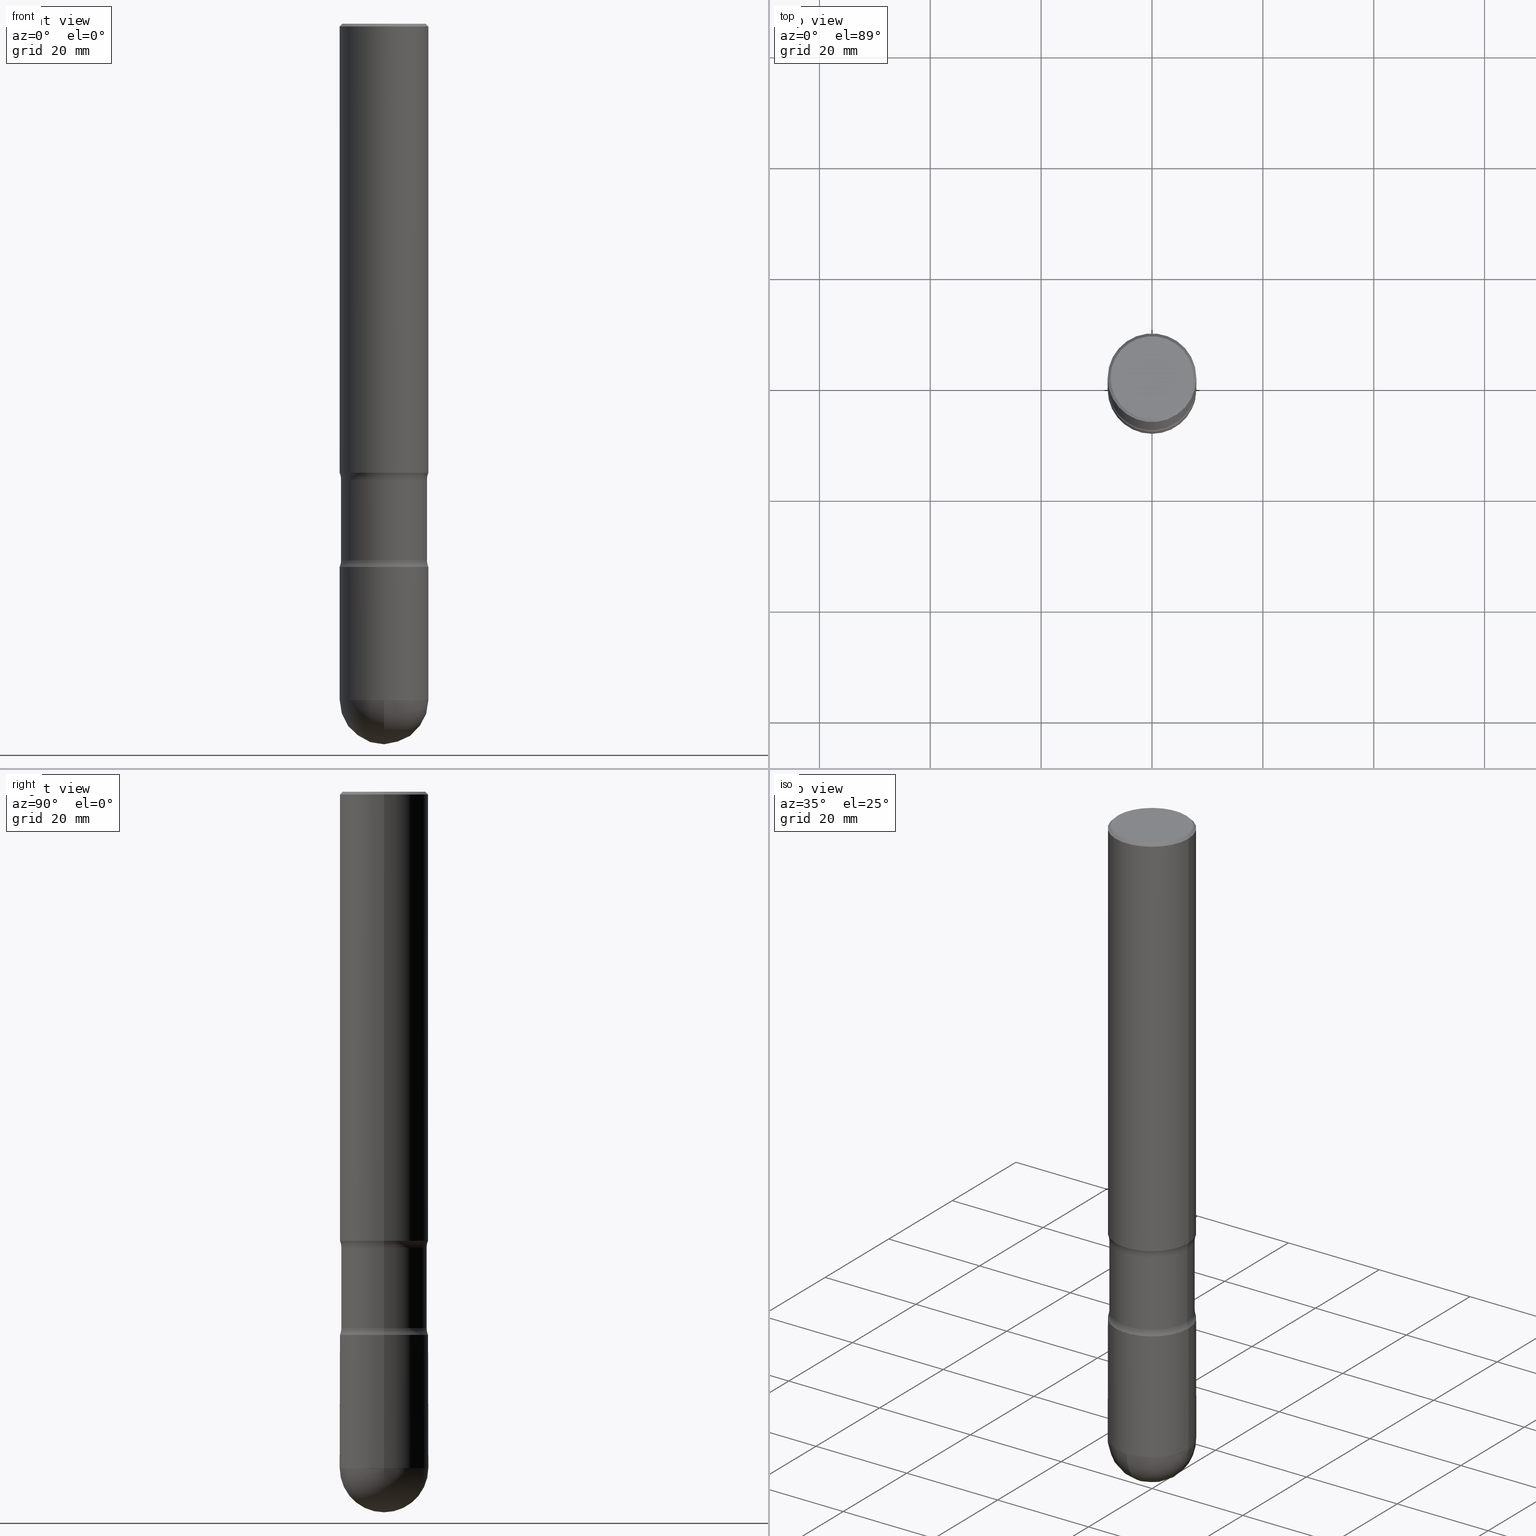
[diagram: canonical four-view strip — front | top / right | iso, engineering-drawing reading convention]
A machine part, canonical four-view strip (front | top / right | iso — engineering-drawing reading convention). The complete STEP part file that produces these views, byte-faithful:
ISO-10303-21;
HEADER;
FILE_DESCRIPTION (( 'STEP AP203' ),
    '1' );
FILE_NAME ('44938.STEP',
    '2024-02-29T19:26:28',
    ( '' ),
    ( '' ),
    'SwSTEP 2.0',
    'SolidWorks 2023',
    '' );
FILE_SCHEMA (( 'CONFIG_CONTROL_DESIGN' ));
ENDSEC;

DATA;
#1 = DIRECTION ( 'NONE',  ( 2.445468806185136597E-29, -3.491481338843145583E-15, -1.000000000000000000 ) ) ;
#2 = EDGE_LOOP ( 'NONE', ( #490, #402, #449, #219 ) ) ;
#3 = DIRECTION ( 'NONE',  ( -1.000000000000000000, 6.982962677686265922E-15, -4.883557194083112340E-29 ) ) ;
#4 = ORIENTED_EDGE ( 'NONE', *, *, #242, .F. ) ;
#5 = CARTESIAN_POINT ( 'NONE',  ( 7.918115602798833639E-29, -1.130497056272076969E-14, -3.237872256956274342 ) ) ;
#6 = ORIENTED_EDGE ( 'NONE', *, *, #160, .F. ) ;
#7 = SECURITY_CLASSIFICATION ( '', '', #108 ) ;
#8 = ORIENTED_EDGE ( 'NONE', *, *, #80, .T. ) ;
#9 = APPROVAL_DATE_TIME ( #229, #133 ) ;
#10 = ADVANCED_FACE ( 'NONE', ( #37 ), #349, .T. ) ;
#11 = ORIENTED_EDGE ( 'NONE', *, *, #220, .F. ) ;
#12 = APPROVAL ( #388, 'UNSPECIFIED' ) ;
#13 = ORIENTED_EDGE ( 'NONE', *, *, #96, .F. ) ;
#14 = CALENDAR_DATE ( 2024, 29, 2 ) ;
#15 = DIRECTION ( 'NONE',  ( -6.982962677686266711E-15, -1.000000000000000000, 3.491481338843145583E-15 ) ) ;
#16 = EDGE_LOOP ( 'NONE', ( #478, #479, #488, #224 ) ) ;
#17 = DIRECTION ( 'NONE',  ( 2.445468806185136597E-29, -3.491481338843145583E-15, -1.000000000000000000 ) ) ;
#18 = CARTESIAN_POINT ( 'NONE',  ( -0.3049999999999992717, -9.175166946026462764E-15, -3.237872256956274342 ) ) ;
#19 = APPROVAL_PERSON_ORGANIZATION ( #455, #133, #407 ) ;
#20 = CARTESIAN_POINT ( 'NONE',  ( 9.435352294904112142E-29, -1.347118244965850850E-14, -3.858300000000000285 ) ) ;
#21 = DIRECTION ( 'NONE',  ( 2.445468806185136597E-29, -3.491481338843145583E-15, -1.000000000000000000 ) ) ;
#22 = DIRECTION ( 'NONE',  ( -1.000000000000000000, 6.982962677686265922E-15, -4.883557194083112340E-29 ) ) ;
#23 = CARTESIAN_POINT ( 'NONE',  ( 0.3149499999999992861, -2.199284095337284349E-15, 1.535751875536926486E-29 ) ) ;
#24 = AXIS2_PLACEMENT_3D ( 'NONE', #377, #458, #410 ) ;
#25 = DIRECTION ( 'NONE',  ( 0.7071067811865426878, -7.319954787623238690E-15, -0.7071067811865523467 ) ) ;
#26 = CARTESIAN_POINT ( 'NONE',  ( -2.237854346276313317E-15, -0.3149500000000162170, -4.803149999999999586 ) ) ;
#27 = PERSON_AND_ORGANIZATION ( #273, #264 ) ;
#28 = CARTESIAN_POINT ( 'NONE',  ( 1.171902003415043533E-28, -1.680867884360359967E-14, -4.803150000000000475 ) ) ;
#29 = CIRCLE ( 'NONE', #378, 0.3149499999999996191 ) ;
#30 = CARTESIAN_POINT ( 'NONE',  ( -0.3149499999999992861, 2.237854346276430463E-15, -1.549218606675779033E-29 ) ) ;
#31 = CARTESIAN_POINT ( 'NONE',  ( 9.435352294904112142E-29, -1.347118244965850850E-14, -3.858300000000000285 ) ) ;
#32 = EDGE_LOOP ( 'NONE', ( #77, #523, #13, #84 ) ) ;
#33 = CARTESIAN_POINT ( 'NONE',  ( 0.3149500000000000077, -7.762795652571971957E-15, -3.189000000000001389 ) ) ;
#34 = ORIENTED_EDGE ( 'NONE', *, *, #347, .T. ) ;
#35 = CARTESIAN_POINT ( 'NONE',  ( 9.315836715029682052E-29, -1.330054587650853348E-14, -3.809427743043726888 ) ) ;
#36 = AXIS2_PLACEMENT_3D ( 'NONE', #506, #521, #359 ) ;
#37 = FACE_OUTER_BOUND ( 'NONE', #560, .T. ) ;
#38 = AXIS2_PLACEMENT_3D ( 'NONE', #440, #400, #533 ) ;
#39 = MANIFOLD_SOLID_BREP ( 'Body-Move/Copy2[2]', #518 ) ;
#40 = ADVANCED_FACE ( 'NONE', ( #543 ), #158, .F. ) ;
#41 = DIRECTION ( 'NONE',  ( 2.445468806185136597E-29, -3.491481338843145583E-15, -1.000000000000000000 ) ) ;
#42 = EDGE_LOOP ( 'NONE', ( #175, #216, #401, #352 ) ) ;
#43 = LINE ( 'NONE', #311, #333 ) ;
#44 = EDGE_LOOP ( 'NONE', ( #564, #460, #354, #8 ) ) ;
#45 = ADVANCED_FACE ( 'NONE', ( #281 ), #287, .T. ) ;
#46 = CARTESIAN_POINT ( 'NONE',  ( 9.434493024368939058E-29, -1.346995563906457038E-14, -3.857948627480751291 ) ) ;
#47 = EDGE_LOOP ( 'NONE', ( #447, #443, #314, #483, #11 ) ) ;
#48 = AXIS2_PLACEMENT_3D ( 'NONE', #278, #136, #22 ) ;
#49 = MECHANICAL_CONTEXT ( 'NONE', #92, 'mechanical' ) ;
#50 = CARTESIAN_POINT ( 'NONE',  ( 1.174595349642814099E-28, -1.677010859266445514E-14, -4.803150000000000475 ) ) ;
#51 = CYLINDRICAL_SURFACE ( 'NONE', #85, 0.3149499999999992861 ) ;
#52 = DIRECTION ( 'NONE',  ( -2.445468806185136597E-29, 3.491481338843145583E-15, 1.000000000000000000 ) ) ;
#53 = DIRECTION ( 'NONE',  ( 2.445468806185136597E-29, -3.491481338843145583E-15, -1.000000000000000000 ) ) ;
#54 = ADVANCED_FACE ( 'NONE', ( #319 ), #196, .T. ) ;
#55 = CIRCLE ( 'NONE', #240, 0.2949499999999996014 ) ;
#56 = LOCAL_TIME ( 14, 26, 28.00000000000000000, #461 ) ;
#57 = DIRECTION ( 'NONE',  ( -1.000000000000000000, 6.982962677686268288E-15, 0.000000000000000000 ) ) ;
#58 = CARTESIAN_POINT ( 'NONE',  ( 9.315836715029682052E-29, -1.330054587650853348E-14, -3.809427743043726888 ) ) ;
#59 = APPROVAL_ROLE ( '' ) ;
#60 = CARTESIAN_POINT ( 'NONE',  ( 1.171902003415043533E-28, -1.680867884360359967E-14, -4.803150000000000475 ) ) ;
#61 = APPROVAL_ROLE ( '' ) ;
#62 = EDGE_CURVE ( 'NONE', #93, #81, #403, .T. ) ;
#63 = DIRECTION ( 'NONE',  ( -2.445468806185136877E-29, 3.491481338843145188E-15, 1.000000000000000000 ) ) ;
#64 = AXIS2_PLACEMENT_3D ( 'NONE', #187, #102, #498 ) ;
#65 = PERSON_AND_ORGANIZATION ( #273, #264 ) ;
#66 = CIRCLE ( 'NONE', #532, 0.2949499999999996014 ) ;
#67 = DIRECTION ( 'NONE',  ( 2.445468806185136597E-29, -3.491481338843145583E-15, -1.000000000000000000 ) ) ;
#68 = LINE ( 'NONE', #513, #197 ) ;
#69 = EDGE_CURVE ( 'NONE', #129, #432, #55, .T. ) ;
#70 = EDGE_CURVE ( 'NONE', #202, #442, #208, .T. ) ;
#71 = CARTESIAN_POINT ( 'NONE',  ( 0.3049999999999992717, -1.334623514300501159E-14, -3.237872256956274342 ) ) ;
#72 = VERTEX_POINT ( 'NONE', #328 ) ;
#73 = AXIS2_PLACEMENT_3D ( 'NONE', #500, #99, #290 ) ;
#74 = PLANE ( 'NONE',  #248 ) ;
#75 = LOCAL_TIME ( 14, 26, 28.00000000000000000, #296 ) ;
#76 = CARTESIAN_POINT ( 'NONE',  ( 2.199284095337402284E-15, 0.3149499999999825772, -4.803150000000001363 ) ) ;
#77 = ORIENTED_EDGE ( 'NONE', *, *, #261, .F. ) ;
#78 = ORIENTED_EDGE ( 'NONE', *, *, #566, .F. ) ;
#79 = DIRECTION ( 'NONE',  ( -1.000000000000000000, 6.982962677686267499E-15, 0.000000000000000000 ) ) ;
#80 = EDGE_CURVE ( 'NONE', #107, #515, #531, .T. ) ;
#81 = VERTEX_POINT ( 'NONE', #376 ) ;
#82 = DIRECTION ( 'NONE',  ( 2.445468806185136877E-29, -3.491481338843145188E-15, -1.000000000000000000 ) ) ;
#83 = AXIS2_PLACEMENT_3D ( 'NONE', #492, #496, #372 ) ;
#84 = ORIENTED_EDGE ( 'NONE', *, *, #516, .F. ) ;
#85 = AXIS2_PLACEMENT_3D ( 'NONE', #236, #233, #536 ) ;
#86 = EDGE_LOOP ( 'NONE', ( #124, #34, #132, #125 ) ) ;
#87 = ORIENTED_EDGE ( 'NONE', *, *, #225, .T. ) ;
#88 = DIRECTION ( 'NONE',  ( 2.445468806185136597E-29, -3.491481338843145583E-15, -1.000000000000000000 ) ) ;
#89 = ORIENTED_EDGE ( 'NONE', *, *, #422, .T. ) ;
#90 = VERTEX_POINT ( 'NONE', #235 ) ;
#91 = CARTESIAN_POINT ( 'NONE',  ( 7.798600022924404670E-29, -1.113433398957079626E-14, -3.189000000000001389 ) ) ;
#92 = APPLICATION_CONTEXT ( 'configuration controlled 3d designs of mechanical parts and assemblies' ) ;
#93 = VERTEX_POINT ( 'NONE', #18 ) ;
#94 = CC_DESIGN_PERSON_AND_ORGANIZATION_ASSIGNMENT ( #65, #505, ( #457 ) ) ;
#95 = AXIS2_PLACEMENT_3D ( 'NONE', #146, #450, #451 ) ;
#96 = EDGE_CURVE ( 'NONE', #259, #221, #456, .T. ) ;
#97 = CYLINDRICAL_SURFACE ( 'NONE', #241, 0.3049999999999993272 ) ;
#98 = CARTESIAN_POINT ( 'NONE',  ( -0.3049999999999993827, -1.117074225981422655E-14, -3.809427743043726888 ) ) ;
#99 = DIRECTION ( 'NONE',  ( 2.445468806185136597E-29, -3.491481338843145583E-15, -1.000000000000000000 ) ) ;
#100 = VECTOR ( 'NONE', #299, 39.37007874015748143 ) ;
#101 = DIRECTION ( 'NONE',  ( 2.445468806185136597E-29, -3.491481338843145583E-15, -1.000000000000000000 ) ) ;
#102 = DIRECTION ( 'NONE',  ( -2.445468806185136597E-29, 3.491481338843145583E-15, 1.000000000000000000 ) ) ;
#103 = EDGE_CURVE ( 'NONE', #399, #180, #563, .T. ) ;
#104 = PRODUCT_DEFINITION ( 'UNKNOWN', '', #457, #164 ) ;
#105 = DATE_AND_TIME ( #298, #503 ) ;
#106 = LINE ( 'NONE', #30, #177 ) ;
#107 = VERTEX_POINT ( 'NONE', #98 ) ;
#108 = SECURITY_CLASSIFICATION_LEVEL ( 'unclassified' ) ;
#109 = SPHERICAL_SURFACE ( 'NONE', #255, 0.3149499999999996191 ) ;
#110 = TOROIDAL_SURFACE ( 'NONE', #309, 0.4300000000000015477, 0.1250000000000021372 ) ;
#111 = AXIS2_PLACEMENT_3D ( 'NONE', #405, #366, #491 ) ;
#112 = DIRECTION ( 'NONE',  ( 2.445468806185136597E-29, -3.491481338843145583E-15, -1.000000000000000000 ) ) ;
#113 = CARTESIAN_POINT ( 'NONE',  ( 7.918115602798833639E-29, -1.130497056272076969E-14, -3.237872256956274342 ) ) ;
#114 = CC_DESIGN_PERSON_AND_ORGANIZATION_ASSIGNMENT ( #555, #553, ( #7 ) ) ;
#115 = PERSON_AND_ORGANIZATION_ROLE ( 'creator' ) ;
#116 = CARTESIAN_POINT ( 'NONE',  ( 9.435352294904112142E-29, -1.347118244965850850E-14, -3.858300000000000285 ) ) ;
#117 = AXIS2_PLACEMENT_3D ( 'NONE', #138, #185, #145 ) ;
#118 = LINE ( 'NONE', #434, #321 ) ;
#119 = CC_DESIGN_APPROVAL ( #329, ( #457 ) ) ;
#120 = DIRECTION ( 'NONE',  ( -1.000000000000000000, 6.982962677686266711E-15, 0.000000000000000000 ) ) ;
#121 = ORIENTED_EDGE ( 'NONE', *, *, #495, .T. ) ;
#122 = ORIENTED_EDGE ( 'NONE', *, *, #514, .T. ) ;
#123 = CARTESIAN_POINT ( 'NONE',  ( 0.000000000000000000, 0.000000000000000000, 0.000000000000000000 ) ) ;
#124 = ORIENTED_EDGE ( 'NONE', *, *, #225, .F. ) ;
#125 = ORIENTED_EDGE ( 'NONE', *, *, #143, .F. ) ;
#126 = CARTESIAN_POINT ( 'NONE',  ( 0.3148013725192478907, -1.562964982492859971E-14, -3.857948627480751291 ) ) ;
#127 = ADVANCED_FACE ( 'NONE', ( #283 ), #547, .T. ) ;
#128 = VECTOR ( 'NONE', #421, 39.37007874015748143 ) ;
#129 = VERTEX_POINT ( 'NONE', #331 ) ;
#130 = AXIS2_PLACEMENT_3D ( 'NONE', #325, #101, #57 ) ;
#131 = DIRECTION ( 'NONE',  ( 2.445468806185136597E-29, -3.491481338843145583E-15, -1.000000000000000000 ) ) ;
#132 = ORIENTED_EDGE ( 'NONE', *, *, #192, .T. ) ;
#133 = APPROVAL ( #193, 'UNSPECIFIED' ) ;
#134 = ORIENTED_EDGE ( 'NONE', *, *, #417, .T. ) ;
#135 = DIRECTION ( 'NONE',  ( -1.000000000000000000, 6.982962677686269077E-15, 0.000000000000000000 ) ) ;
#136 = DIRECTION ( 'NONE',  ( 2.445468806185136597E-29, -3.491481338843145583E-15, -1.000000000000000000 ) ) ;
#137 =( NAMED_UNIT ( * ) PLANE_ANGLE_UNIT ( ) SI_UNIT ( $, .RADIAN. ) );
#138 = CARTESIAN_POINT ( 'NONE',  ( -0.4299999999999877809, -8.302296611315761467E-15, -3.237872256956274342 ) ) ;
#139 = AXIS2_PLACEMENT_3D ( 'NONE', #537, #305, #172 ) ;
#140 = ORIENTED_EDGE ( 'NONE', *, *, #143, .T. ) ;
#141 = CIRCLE ( 'NONE', #358, 0.3144499999999992856 ) ;
#142 = EDGE_LOOP ( 'NONE', ( #362, #530, #398, #527, #522 ) ) ;
#143 = EDGE_CURVE ( 'NONE', #481, #81, #556, .T. ) ;
#144 = DIRECTION ( 'NONE',  ( 2.445468806185136597E-29, -3.491481338843145583E-15, -1.000000000000000000 ) ) ;
#145 = DIRECTION ( 'NONE',  ( 1.000000000000000000, -6.982962677686269077E-15, 0.000000000000000000 ) ) ;
#146 = CARTESIAN_POINT ( 'NONE',  ( 0.000000000000000000, 0.000000000000000000, 0.000000000000000000 ) ) ;
#147 = ORIENTED_EDGE ( 'NONE', *, *, #422, .F. ) ;
#148 = DIRECTION ( 'NONE',  ( -1.000000000000000000, 6.982962677686266711E-15, -4.883557194083112901E-29 ) ) ;
#149 = EDGE_CURVE ( 'NONE', #180, #107, #188, .T. ) ;
#150 = CC_DESIGN_PERSON_AND_ORGANIZATION_ASSIGNMENT ( #285, #327, ( #156 ) ) ;
#151 = AXIS2_PLACEMENT_3D ( 'NONE', #257, #153, #425 ) ;
#152 = LOCAL_TIME ( 14, 26, 28.00000000000000000, #199 ) ;
#153 = DIRECTION ( 'NONE',  ( -2.445468806185136597E-29, 3.491481338843145583E-15, 1.000000000000000000 ) ) ;
#154 = DIRECTION ( 'NONE',  ( -2.445468806185136597E-29, 3.491481338843145583E-15, 1.000000000000000000 ) ) ;
#155 = PERSON_AND_ORGANIZATION ( #273, #264 ) ;
#156 = PRODUCT ( '44938', '44938', '', ( #49 ) ) ;
#157 = CARTESIAN_POINT ( 'NONE',  ( 2.195792613998535611E-15, 0.3144499999999858519, -3.858300000000001173 ) ) ;
#158 = TOROIDAL_SURFACE ( 'NONE', #48, 0.4299999999999877809, 0.1249999999999884676 ) ;
#159 = AXIS2_PLACEMENT_3D ( 'NONE', #46, #169, #79 ) ;
#160 = EDGE_CURVE ( 'NONE', #93, #306, #386, .T. ) ;
#161 = DIRECTION ( 'NONE',  ( -7.105427357600999492E-15, -1.000000000000000000, 0.000000000000000000 ) ) ;
#162 = COORDINATED_UNIVERSAL_TIME_OFFSET ( 5, 0, .BEHIND. ) ;
#163 = CARTESIAN_POINT ( 'NONE',  ( 1.171902003415043533E-28, -1.680867884360359967E-14, -4.803150000000000475 ) ) ;
#164 = DESIGN_CONTEXT ( 'detailed design', #471, 'design' ) ;
#165 = ADVANCED_BREP_SHAPE_REPRESENTATION ( '44938', ( #423, #39, #277 ), #279 ) ;
#166 = DIRECTION ( 'NONE',  ( 1.000000000000000000, -6.982962677686264344E-15, 0.000000000000000000 ) ) ;
#167 = AXIS2_PLACEMENT_3D ( 'NONE', #211, #67, #469 ) ;
#168 = CIRCLE ( 'NONE', #475, 0.1250000000000021372 ) ;
#169 = DIRECTION ( 'NONE',  ( 2.445468806185136597E-29, -3.491481338843145583E-15, -1.000000000000000000 ) ) ;
#170 = ORIENTED_EDGE ( 'NONE', *, *, #538, .T. ) ;
#171 = FACE_OUTER_BOUND ( 'NONE', #396, .T. ) ;
#172 = DIRECTION ( 'NONE',  ( 1.000000000000000000, -6.982962677686268288E-15, 0.000000000000000000 ) ) ;
#173 = ADVANCED_FACE ( 'NONE', ( #462 ), #110, .F. ) ;
#174 = CARTESIAN_POINT ( 'NONE',  ( 0.3149499999999996747, -2.230543471175005872E-15, -0.02000000000000033348 ) ) ;
#175 = ORIENTED_EDGE ( 'NONE', *, *, #160, .T. ) ;
#176 = CARTESIAN_POINT ( 'NONE',  ( 4.890937612370354609E-31, -6.982962677686407473E-17, -0.02000000000000033348 ) ) ;
#177 = VECTOR ( 'NONE', #63, 39.37007874015748143 ) ;
#178 = ORIENTED_EDGE ( 'NONE', *, *, #62, .F. ) ;
#179 = APPROVAL_PERSON_ORGANIZATION ( #206, #329, #61 ) ;
#180 = VERTEX_POINT ( 'NONE', #286 ) ;
#181 =( NAMED_UNIT ( * ) SI_UNIT ( $, .STERADIAN. ) SOLID_ANGLE_UNIT ( ) );
#182 = ORIENTED_EDGE ( 'NONE', *, *, #459, .F. ) ;
#183 = EDGE_LOOP ( 'NONE', ( #204, #78, #433, #544 ) ) ;
#184 = PERSON_AND_ORGANIZATION ( #273, #264 ) ;
#185 = DIRECTION ( 'NONE',  ( -6.982962677686266711E-15, -1.000000000000000000, 3.491481338843145583E-15 ) ) ;
#186 = DIRECTION ( 'NONE',  ( -1.000000000000000000, 6.982962677686265922E-15, 0.000000000000000000 ) ) ;
#187 = CARTESIAN_POINT ( 'NONE',  ( 1.174595349642814099E-28, -1.677010859266445514E-14, -4.803150000000000475 ) ) ;
#188 = CIRCLE ( 'NONE', #493, 0.1250000000000021372 ) ;
#189 = ORIENTED_EDGE ( 'NONE', *, *, #347, .F. ) ;
#190 = DIRECTION ( 'NONE',  ( 2.445468806185136597E-29, -3.491481338843145583E-15, -1.000000000000000000 ) ) ;
#191 = DIRECTION ( 'NONE',  ( -1.000000000000000000, 6.982962677686269866E-15, 0.000000000000000000 ) ) ;
#192 = EDGE_CURVE ( 'NONE', #363, #81, #246, .T. ) ;
#193 = APPROVAL_STATUS ( 'not_yet_approved' ) ;
#194 = DIRECTION ( 'NONE',  ( 1.000000000000000000, -6.982962677686268288E-15, 0.000000000000000000 ) ) ;
#195 = DATE_TIME_ROLE ( 'creation_date' ) ;
#196 = CYLINDRICAL_SURFACE ( 'NONE', #95, 0.3149499999999992861 ) ;
#197 = VECTOR ( 'NONE', #25, 39.37007874015748143 ) ;
#198 = VECTOR ( 'NONE', #297, 39.37007874015748143 ) ;
#199 = COORDINATED_UNIVERSAL_TIME_OFFSET ( 5, 0, .BEHIND. ) ;
#200 = DIRECTION ( 'NONE',  ( -1.000000000000000000, 7.105427357601001070E-15, -4.926315508542082329E-29 ) ) ;
#201 = EDGE_CURVE ( 'NONE', #202, #72, #539, .T. ) ;
#202 = VERTEX_POINT ( 'NONE', #420 ) ;
#203 = CARTESIAN_POINT ( 'NONE',  ( 0.3149499999999998967, -1.563189629405665068E-14, -3.858300000000000285 ) ) ;
#204 = ORIENTED_EDGE ( 'NONE', *, *, #417, .F. ) ;
#205 = EDGE_CURVE ( 'NONE', #259, #524, #106, .T. ) ;
#206 = PERSON_AND_ORGANIZATION ( #273, #264 ) ;
#207 = DIRECTION ( 'NONE',  ( -1.000000000000000000, 6.982962677686265922E-15, -4.876176775795935793E-29 ) ) ;
#208 = CIRCLE ( 'NONE', #393, 0.3149499999999991751 ) ;
#209 = AXIS2_PLACEMENT_3D ( 'NONE', #412, #190, #501 ) ;
#210 = DIRECTION ( 'NONE',  ( -1.000000000000000000, 6.860497997771524463E-15, 0.000000000000000000 ) ) ;
#211 = CARTESIAN_POINT ( 'NONE',  ( 9.315836715029682052E-29, -1.330054587650853348E-14, -3.809427743043726888 ) ) ;
#212 = EDGE_CURVE ( 'NONE', #129, #351, #68, .T. ) ;
#213 = CARTESIAN_POINT ( 'NONE',  ( 4.890937612370354609E-31, -6.982962677686407473E-17, -0.02000000000000033348 ) ) ;
#214 = EDGE_LOOP ( 'NONE', ( #223, #87, #269, #406 ) ) ;
#215 = ORIENTED_EDGE ( 'NONE', *, *, #212, .T. ) ;
#216 = ORIENTED_EDGE ( 'NONE', *, *, #392, .T. ) ;
#217 = CIRCLE ( 'NONE', #332, 0.3049999999999992717 ) ;
#218 = DIRECTION ( 'NONE',  ( 6.860497997771531562E-15, 1.000000000000000000, -3.491481338843145583E-15 ) ) ;
#219 = ORIENTED_EDGE ( 'NONE', *, *, #545, .F. ) ;
#220 = EDGE_CURVE ( 'NONE', #524, #72, #320, .T. ) ;
#221 = VERTEX_POINT ( 'NONE', #26 ) ;
#222 = CARTESIAN_POINT ( 'NONE',  ( -0.2949499999999996014, 2.059624841783561697E-15, -1.438228340021009396E-29 ) ) ;
#223 = ORIENTED_EDGE ( 'NONE', *, *, #459, .T. ) ;
#224 = ORIENTED_EDGE ( 'NONE', *, *, #284, .F. ) ;
#225 = EDGE_CURVE ( 'NONE', #351, #481, #294, .T. ) ;
#226 = LINE ( 'NONE', #562, #276 ) ;
#227 = EDGE_LOOP ( 'NONE', ( #535, #170 ) ) ;
#228 = ORIENTED_EDGE ( 'NONE', *, *, #439, .F. ) ;
#229 = DATE_AND_TIME ( #14, #56 ) ;
#230 = CIRCLE ( 'NONE', #36, 0.3149499999999996747 ) ;
#231 = ORIENTED_EDGE ( 'NONE', *, *, #103, .F. ) ;
#232 = CONICAL_SURFACE ( 'NONE', #209, 0.3149499999999996747, 0.7853981633974415066 ) ;
#233 = DIRECTION ( 'NONE',  ( -2.445468806185136597E-29, 3.491481338843145583E-15, 1.000000000000000000 ) ) ;
#234 = EDGE_LOOP ( 'NONE', ( #147, #444 ) ) ;
#235 = CARTESIAN_POINT ( 'NONE',  ( 1.250268716579729628E-28, -1.788903576580267786E-14, -5.118100000000000094 ) ) ;
#236 = CARTESIAN_POINT ( 'NONE',  ( 0.000000000000000000, 0.000000000000000000, 0.000000000000000000 ) ) ;
#237 = DIRECTION ( 'NONE',  ( 1.000000000000000000, -6.982962677686264344E-15, 0.000000000000000000 ) ) ;
#238 = CLOSED_SHELL ( 'NONE', ( #552, #267, #127, #54, #245 ) ) ;
#239 = DIRECTION ( 'NONE',  ( -2.445468806185136597E-29, 3.491481338843145583E-15, 1.000000000000000000 ) ) ;
#240 = AXIS2_PLACEMENT_3D ( 'NONE', #408, #21, #322 ) ;
#241 = AXIS2_PLACEMENT_3D ( 'NONE', #364, #282, #135 ) ;
#242 = EDGE_CURVE ( 'NONE', #306, #481, #465, .T. ) ;
#243 = EDGE_CURVE ( 'NONE', #90, #221, #29, .T. ) ;
#244 = DIRECTION ( 'NONE',  ( 2.445468806185136597E-29, -3.491481338843145583E-15, -1.000000000000000000 ) ) ;
#245 = ADVANCED_FACE ( 'NONE', ( #389 ), #383, .F. ) ;
#246 = LINE ( 'NONE', #418, #540 ) ;
#247 = CARTESIAN_POINT ( 'NONE',  ( 0.4299999999999877809, -1.425498470176244572E-14, -3.237872256956274342 ) ) ;
#248 = AXIS2_PLACEMENT_3D ( 'NONE', #157, #343, #340 ) ;
#249 = DIRECTION ( 'NONE',  ( 1.000000000000000000, -6.982962677686266711E-15, 0.000000000000000000 ) ) ;
#250 = APPROVAL_DATE_TIME ( #105, #329 ) ;
#251 = CARTESIAN_POINT ( 'NONE',  ( 0.3144499999999992856, -1.566697506365695063E-14, -3.858300000000000285 ) ) ;
#252 = COORDINATED_UNIVERSAL_TIME_OFFSET ( 5, 0, .BEHIND. ) ;
#253 = DIRECTION ( 'NONE',  ( -2.438088387897960049E-29, 3.491481338843145188E-15, 1.000000000000000000 ) ) ;
#254 = EDGE_CURVE ( 'NONE', #93, #107, #430, .T. ) ;
#255 = AXIS2_PLACEMENT_3D ( 'NONE', #163, #337, #381 ) ;
#256 = AXIS2_PLACEMENT_3D ( 'NONE', #20, #17, #186 ) ;
#257 = CARTESIAN_POINT ( 'NONE',  ( 9.435352294904112142E-29, -1.347118244965850850E-14, -3.858300000000000285 ) ) ;
#258 = CYLINDRICAL_SURFACE ( 'NONE', #38, 0.3149499999999998967 ) ;
#259 = VERTEX_POINT ( 'NONE', #511 ) ;
#260 = CARTESIAN_POINT ( 'NONE',  ( 1.174595349642814099E-28, -1.677010859266445514E-14, -4.803150000000000475 ) ) ;
#261 = EDGE_CURVE ( 'NONE', #90, #442, #428, .T. ) ;
#262 = ORIENTED_EDGE ( 'NONE', *, *, #416, .T. ) ;
#263 = AXIS2_PLACEMENT_3D ( 'NONE', #35, #307, #431 ) ;
#264 = ORGANIZATION ( 'UNSPECIFIED', 'UNSPECIFIED', '' ) ;
#265 = CARTESIAN_POINT ( 'NONE',  ( 0.4300000000000015477, -1.625056001555030102E-14, -3.809427743043726888 ) ) ;
#266 = EDGE_LOOP ( 'NONE', ( #231, #262, #272, #435 ) ) ;
#267 = ADVANCED_FACE ( 'NONE', ( #551 ), #109, .T. ) ;
#268 = DIRECTION ( 'NONE',  ( -1.000000000000000000, 6.982962677686266711E-15, 0.000000000000000000 ) ) ;
#269 = ORIENTED_EDGE ( 'NONE', *, *, #495, .F. ) ;
#270 = ORIENTED_EDGE ( 'NONE', *, *, #220, .T. ) ;
#271 = FACE_OUTER_BOUND ( 'NONE', #214, .T. ) ;
#272 = ORIENTED_EDGE ( 'NONE', *, *, #284, .T. ) ;
#273 = PERSON ( 'UNSPECIFIED', 'UNSPECIFIED', 'UNSPECIFIED', ('UNSPECIFIED'), ('UNSPECIFIED'), ('UNSPECIFIED') ) ;
#274 = CC_DESIGN_PERSON_AND_ORGANIZATION_ASSIGNMENT ( #184, #115, ( #104 ) ) ;
#275 = CARTESIAN_POINT ( 'NONE',  ( 0.000000000000000000, 0.000000000000000000, 0.000000000000000000 ) ) ;
#276 = VECTOR ( 'NONE', #82, 39.37007874015748143 ) ;
#277 = AXIS2_PLACEMENT_3D ( 'NONE', #275, #375, #373 ) ;
#278 = CARTESIAN_POINT ( 'NONE',  ( 7.918115602798833639E-29, -1.130497056272076969E-14, -3.237872256956274342 ) ) ;
#279 =( GEOMETRIC_REPRESENTATION_CONTEXT ( 3 ) GLOBAL_UNCERTAINTY_ASSIGNED_CONTEXT ( ( #534 ) ) GLOBAL_UNIT_ASSIGNED_CONTEXT ( ( #454, #137, #181 ) ) REPRESENTATION_CONTEXT ( 'NONE', 'WORKASPACE' ) );
#280 = FACE_OUTER_BOUND ( 'NONE', #142, .T. ) ;
#281 = FACE_OUTER_BOUND ( 'NONE', #183, .T. ) ;
#282 = DIRECTION ( 'NONE',  ( 2.445468806185136597E-29, -3.491481338843145583E-15, -1.000000000000000000 ) ) ;
#283 = FACE_OUTER_BOUND ( 'NONE', #2, .T. ) ;
#284 = EDGE_CURVE ( 'NONE', #515, #107, #448, .T. ) ;
#285 = PERSON_AND_ORGANIZATION ( #273, #264 ) ;
#286 = CARTESIAN_POINT ( 'NONE',  ( -0.3148013725192478907, -1.127170940387825045E-14, -3.857948627480751291 ) ) ;
#287 = CONICAL_SURFACE ( 'NONE', #370, 0.3144499999999992856, 0.7853981633972539900 ) ;
#288 = AXIS2_PLACEMENT_3D ( 'NONE', #213, #561, #120 ) ;
#289 = LENGTH_MEASURE_WITH_UNIT ( LENGTH_MEASURE( 0.02539999999999999897 ), #318 );
#290 = DIRECTION ( 'NONE',  ( -1.000000000000000000, 6.982962677686269866E-15, 0.000000000000000000 ) ) ;
#291 = DATE_AND_TIME ( #339, #152 ) ;
#292 = DIRECTION ( 'NONE',  ( 2.445468806185136877E-29, -3.491481338843145188E-15, -1.000000000000000000 ) ) ;
#293 = PRODUCT_RELATED_PRODUCT_CATEGORY ( 'detail', '', ( #156 ) ) ;
#294 = LINE ( 'NONE', #203, #508 ) ;
#295 = CIRCLE ( 'NONE', #151, 0.3149499999999993416 ) ;
#296 = COORDINATED_UNIVERSAL_TIME_OFFSET ( 5, 0, .BEHIND. ) ;
#297 = DIRECTION ( 'NONE',  ( 0.7071067811864101271, -2.468850131080817784E-15, 0.7071067811866849073 ) ) ;
#298 = CALENDAR_DATE ( 2024, 29, 2 ) ;
#299 = DIRECTION ( 'NONE',  ( 2.445468806185136877E-29, -3.491481338843145188E-15, -1.000000000000000000 ) ) ;
#300 = ORIENTED_EDGE ( 'NONE', *, *, #316, .F. ) ;
#301 = AXIS2_PLACEMENT_3D ( 'NONE', #247, #466, #210 ) ;
#302 = CC_DESIGN_SECURITY_CLASSIFICATION ( #7, ( #457 ) ) ;
#303 = VERTEX_POINT ( 'NONE', #507 ) ;
#304 = DIRECTION ( 'NONE',  ( -1.000000000000000000, 6.982962677686269866E-15, 0.000000000000000000 ) ) ;
#305 = DIRECTION ( 'NONE',  ( -2.445468806185136597E-29, 3.491481338843145583E-15, 1.000000000000000000 ) ) ;
#306 = VERTEX_POINT ( 'NONE', #71 ) ;
#307 = DIRECTION ( 'NONE',  ( 2.445468806185136597E-29, -3.491481338843145583E-15, -1.000000000000000000 ) ) ;
#308 = ORIENTED_EDGE ( 'NONE', *, *, #69, .T. ) ;
#309 = AXIS2_PLACEMENT_3D ( 'NONE', #58, #244, #415 ) ;
#310 = CIRCLE ( 'NONE', #565, 0.3149500000000000077 ) ;
#311 = CARTESIAN_POINT ( 'NONE',  ( -0.3144499999999992856, -1.123688081706087893E-14, -3.858300000000000285 ) ) ;
#312 = EDGE_LOOP ( 'NONE', ( #4, #6, #453, #121 ) ) ;
#313 = DIRECTION ( 'NONE',  ( -2.445468806185136597E-29, 3.491481338843145583E-15, 1.000000000000000000 ) ) ;
#314 = ORIENTED_EDGE ( 'NONE', *, *, #545, .T. ) ;
#315 = ADVANCED_FACE ( 'NONE', ( #554 ), #74, .T. ) ;
#316 = EDGE_CURVE ( 'NONE', #306, #93, #217, .T. ) ;
#317 = ORIENTED_EDGE ( 'NONE', *, *, #336, .T. ) ;
#318 =( LENGTH_UNIT ( ) NAMED_UNIT ( * ) SI_UNIT ( $, .METRE. ) );
#319 = FACE_OUTER_BOUND ( 'NONE', #47, .T. ) ;
#320 = CIRCLE ( 'NONE', #413, 0.3149499999999993416 ) ;
#321 = VECTOR ( 'NONE', #487, 39.37007874015748143 ) ;
#322 = DIRECTION ( 'NONE',  ( -1.000000000000000000, 6.982962677686266711E-15, -4.876176775795935793E-29 ) ) ;
#323 = ORIENTED_EDGE ( 'NONE', *, *, #212, .F. ) ;
#324 = EDGE_CURVE ( 'NONE', #303, #399, #427, .T. ) ;
#325 = CARTESIAN_POINT ( 'NONE',  ( 9.435352294904112142E-29, -1.347118244965850850E-14, -3.858300000000000285 ) ) ;
#326 = CARTESIAN_POINT ( 'NONE',  ( 9.435352294904112142E-29, -1.347118244965850850E-14, -3.858300000000000285 ) ) ;
#327 = PERSON_AND_ORGANIZATION_ROLE ( 'design_owner' ) ;
#328 = CARTESIAN_POINT ( 'NONE',  ( 0.3149499999999993416, -1.567046654499579206E-14, -3.858300000000000285 ) ) ;
#329 = APPROVAL ( #424, 'UNSPECIFIED' ) ;
#330 = APPLICATION_PROTOCOL_DEFINITION ( 'international standard', 'config_control_design', 1994, #92 ) ;
#331 = CARTESIAN_POINT ( 'NONE',  ( 0.2949499999999996014, -2.127023677808858103E-15, 1.463937372219019813E-29 ) ) ;
#332 = AXIS2_PLACEMENT_3D ( 'NONE', #113, #112, #346 ) ;
#333 = VECTOR ( 'NONE', #437, 39.37007874015748143 ) ;
#334 = DATE_AND_TIME ( #464, #387 ) ;
#335 = DIRECTION ( 'NONE',  ( 1.000000000000000000, -6.982962677686265922E-15, 4.876176775795935793E-29 ) ) ;
#336 = EDGE_CURVE ( 'NONE', #72, #524, #295, .T. ) ;
#337 = DIRECTION ( 'NONE',  ( -1.000000000000000000, 6.982962677686266711E-15, -4.883557194083112901E-29 ) ) ;
#338 = PRODUCT_DEFINITION_SHAPE ( 'NONE', 'NONE',  #104 ) ;
#339 = CALENDAR_DATE ( 2024, 29, 2 ) ;
#340 = DIRECTION ( 'NONE',  ( -1.000000000000000000, 6.982962677686265922E-15, -4.876176775795935793E-29 ) ) ;
#341 = AXIS2_PLACEMENT_3D ( 'NONE', #528, #1, #482 ) ;
#342 = AXIS2_PLACEMENT_3D ( 'NONE', #260, #313, #166 ) ;
#343 = DIRECTION ( 'NONE',  ( 2.438088387897960049E-29, -3.491481338843145188E-15, -1.000000000000000000 ) ) ;
#344 = ADVANCED_FACE ( 'NONE', ( #385 ), #472, .T. ) ;
#345 = DATE_TIME_ROLE ( 'classification_date' ) ;
#346 = DIRECTION ( 'NONE',  ( -1.000000000000000000, 6.982962677686269866E-15, 0.000000000000000000 ) ) ;
#347 = EDGE_CURVE ( 'NONE', #351, #363, #230, .T. ) ;
#348 = CYLINDRICAL_SURFACE ( 'NONE', #256, 0.3149499999999998967 ) ;
#349 = CONICAL_SURFACE ( 'NONE', #139, 0.3144499999999992856, 0.7853981633972539900 ) ;
#350 = FACE_OUTER_BOUND ( 'NONE', #86, .T. ) ;
#351 = VERTEX_POINT ( 'NONE', #174 ) ;
#352 = ORIENTED_EDGE ( 'NONE', *, *, #254, .F. ) ;
#353 = CARTESIAN_POINT ( 'NONE',  ( -0.3149499999999996747, 2.129454468560423417E-15, -0.02000000000000033348 ) ) ;
#354 = ORIENTED_EDGE ( 'NONE', *, *, #149, .T. ) ;
#355 = CYLINDRICAL_SURFACE ( 'NONE', #341, 0.3049999999999993272 ) ;
#356 = EDGE_LOOP ( 'NONE', ( #317, #270 ) ) ;
#357 = AXIS2_PLACEMENT_3D ( 'NONE', #116, #550, #207 ) ;
#358 = AXIS2_PLACEMENT_3D ( 'NONE', #542, #144, #369 ) ;
#359 = DIRECTION ( 'NONE',  ( -1.000000000000000000, 6.982962677686266711E-15, 0.000000000000000000 ) ) ;
#360 = ADVANCED_FACE ( 'NONE', ( #477 ), #355, .T. ) ;
#361 = ORIENTED_EDGE ( 'NONE', *, *, #439, .T. ) ;
#362 = ORIENTED_EDGE ( 'NONE', *, *, #516, .T. ) ;
#363 = VERTEX_POINT ( 'NONE', #353 ) ;
#364 = CARTESIAN_POINT ( 'NONE',  ( 9.435352294904112142E-29, -1.347118244965850850E-14, -3.858300000000000285 ) ) ;
#365 = EDGE_LOOP ( 'NONE', ( #300, #446, #140, #178 ) ) ;
#366 = DIRECTION ( 'NONE',  ( -2.445468806185136597E-29, 3.491481338843145583E-15, 1.000000000000000000 ) ) ;
#367 = DIRECTION ( 'NONE',  ( 2.445468806185136877E-29, -3.491481338843145188E-15, -1.000000000000000000 ) ) ;
#368 = ADVANCED_FACE ( 'NONE', ( #517 ), #548, .F. ) ;
#369 = DIRECTION ( 'NONE',  ( -1.000000000000000000, 6.982962677686268288E-15, 0.000000000000000000 ) ) ;
#370 = AXIS2_PLACEMENT_3D ( 'NONE', #326, #239, #194 ) ;
#371 = CONICAL_SURFACE ( 'NONE', #541, 0.3149499999999996747, 0.7853981633974415066 ) ;
#372 = DIRECTION ( 'NONE',  ( -1.000000000000000000, 6.982962677686267499E-15, 0.000000000000000000 ) ) ;
#373 = DIRECTION ( 'NONE',  ( 1.000000000000000000, 0.000000000000000000, 0.000000000000000000 ) ) ;
#374 = CARTESIAN_POINT ( 'NONE',  ( -0.4300000000000015477, -1.029787192510342744E-14, -3.809427743043726888 ) ) ;
#375 = DIRECTION ( 'NONE',  ( 0.000000000000000000, 0.000000000000000000, 1.000000000000000000 ) ) ;
#376 = CARTESIAN_POINT ( 'NONE',  ( -0.3149500000000000077, -8.935049894233506386E-15, -3.189000000000001389 ) ) ;
#377 = CARTESIAN_POINT ( 'NONE',  ( 9.315836715029682052E-29, -1.330054587650853348E-14, -3.809427743043726888 ) ) ;
#378 = AXIS2_PLACEMENT_3D ( 'NONE', #509, #200, #161 ) ;
#379 = ADVANCED_FACE ( 'NONE', ( #390 ), #520, .F. ) ;
#380 = DIMENSIONAL_EXPONENTS ( 1.000000000000000000, 0.000000000000000000, 0.000000000000000000, 0.000000000000000000, 0.000000000000000000, 0.000000000000000000, 0.000000000000000000 ) ;
#381 = DIRECTION ( 'NONE',  ( 6.982962677686266711E-15, 1.000000000000000000, -3.469564049740297503E-15 ) ) ;
#382 = DATE_AND_TIME ( #468, #75 ) ;
#383 = PLANE ( 'NONE',  #357 ) ;
#384 = PERSON_AND_ORGANIZATION_ROLE ( 'design_supplier' ) ;
#385 = FACE_OUTER_BOUND ( 'NONE', #234, .T. ) ;
#386 = CIRCLE ( 'NONE', #73, 0.3049999999999992717 ) ;
#387 = LOCAL_TIME ( 14, 26, 28.00000000000000000, #162 ) ;
#388 = APPROVAL_STATUS ( 'not_yet_approved' ) ;
#389 = FACE_OUTER_BOUND ( 'NONE', #356, .T. ) ;
#390 = FACE_OUTER_BOUND ( 'NONE', #312, .T. ) ;
#391 = VERTEX_POINT ( 'NONE', #397 ) ;
#392 = EDGE_CURVE ( 'NONE', #306, #515, #226, .T. ) ;
#393 = AXIS2_PLACEMENT_3D ( 'NONE', #50, #52, #237 ) ;
#394 = CIRCLE ( 'NONE', #159, 0.3148013725192478907 ) ;
#395 = DIRECTION ( 'NONE',  ( -1.000000000000000000, 6.860497997771536296E-15, 0.000000000000000000 ) ) ;
#396 = EDGE_LOOP ( 'NONE', ( #89, #215, #182, #228 ) ) ;
#397 = CARTESIAN_POINT ( 'NONE',  ( -0.3144499999999992856, -1.123501908580842096E-14, -3.858300000000000285 ) ) ;
#398 = ORIENTED_EDGE ( 'NONE', *, *, #336, .F. ) ;
#399 = VERTEX_POINT ( 'NONE', #126 ) ;
#400 = DIRECTION ( 'NONE',  ( 2.445468806185136597E-29, -3.491481338843145583E-15, -1.000000000000000000 ) ) ;
#401 = ORIENTED_EDGE ( 'NONE', *, *, #80, .F. ) ;
#402 = ORIENTED_EDGE ( 'NONE', *, *, #261, .T. ) ;
#403 = CIRCLE ( 'NONE', #117, 0.1249999999999884953 ) ;
#404 = APPROVAL_PERSON_ORGANIZATION ( #155, #12, #59 ) ;
#405 = CARTESIAN_POINT ( 'NONE',  ( 1.174595349642814099E-28, -1.677010859266445514E-14, -4.803150000000000475 ) ) ;
#406 = ORIENTED_EDGE ( 'NONE', *, *, #192, .F. ) ;
#407 = APPROVAL_ROLE ( '' ) ;
#408 = CARTESIAN_POINT ( 'NONE',  ( 0.000000000000000000, 0.000000000000000000, 0.000000000000000000 ) ) ;
#409 = FACE_OUTER_BOUND ( 'NONE', #42, .T. ) ;
#410 = DIRECTION ( 'NONE',  ( -1.000000000000000000, 6.982962677686267499E-15, 0.000000000000000000 ) ) ;
#411 = CC_DESIGN_DATE_AND_TIME_ASSIGNMENT ( #382, #345, ( #7 ) ) ;
#412 = CARTESIAN_POINT ( 'NONE',  ( 4.890937612370354609E-31, -6.982962677686407473E-17, -0.02000000000000033348 ) ) ;
#413 = AXIS2_PLACEMENT_3D ( 'NONE', #31, #154, #249 ) ;
#414 = DIRECTION ( 'NONE',  ( 6.982962677686266711E-15, 1.000000000000000000, -3.469564049740297503E-15 ) ) ;
#415 = DIRECTION ( 'NONE',  ( -1.000000000000000000, 6.982962677686266711E-15, -4.883557194083113462E-29 ) ) ;
#416 = EDGE_CURVE ( 'NONE', #399, #515, #168, .T. ) ;
#417 = EDGE_CURVE ( 'NONE', #391, #180, #43, .T. ) ;
#418 = CARTESIAN_POINT ( 'NONE',  ( -0.3149499999999998967, -1.127189835432122020E-14, -3.858300000000000285 ) ) ;
#419 = AXIS2_PLACEMENT_3D ( 'NONE', #504, #53, #191 ) ;
#420 = CARTESIAN_POINT ( 'NONE',  ( 0.3149499999999991751, -1.731992961649876932E-14, -4.803150000000000475 ) ) ;
#421 = DIRECTION ( 'NONE',  ( -2.445468806185136877E-29, 3.491481338843145188E-15, 1.000000000000000000 ) ) ;
#422 = EDGE_CURVE ( 'NONE', #432, #129, #66, .T. ) ;
#423 = MANIFOLD_SOLID_BREP ( 'Body-Move/Copy2[1]', #238 ) ;
#424 = APPROVAL_STATUS ( 'not_yet_approved' ) ;
#425 = DIRECTION ( 'NONE',  ( 1.000000000000000000, -6.982962677686266711E-15, 0.000000000000000000 ) ) ;
#426 = CC_DESIGN_DATE_AND_TIME_ASSIGNMENT ( #334, #195, ( #104 ) ) ;
#427 = LINE ( 'NONE', #251, #198 ) ;
#428 = CIRCLE ( 'NONE', #502, 0.3149499999999996191 ) ;
#429 = CC_DESIGN_APPROVAL ( #133, ( #104 ) ) ;
#430 = LINE ( 'NONE', #559, #100 ) ;
#431 = DIRECTION ( 'NONE',  ( -1.000000000000000000, 6.982962677686266711E-15, -4.883557194083113462E-29 ) ) ;
#432 = VERTEX_POINT ( 'NONE', #222 ) ;
#433 = ORIENTED_EDGE ( 'NONE', *, *, #324, .T. ) ;
#434 = CARTESIAN_POINT ( 'NONE',  ( -0.3149499999999996747, 2.129454468560423417E-15, -0.02000000000000033348 ) ) ;
#435 = ORIENTED_EDGE ( 'NONE', *, *, #149, .F. ) ;
#436 = CIRCLE ( 'NONE', #130, 0.3144499999999992856 ) ;
#437 = DIRECTION ( 'NONE',  ( -0.7071067811864101271, 7.493145998869857178E-15, 0.7071067811866849073 ) ) ;
#438 = ORIENTED_EDGE ( 'NONE', *, *, #538, .F. ) ;
#439 = EDGE_CURVE ( 'NONE', #432, #363, #118, .T. ) ;
#440 = CARTESIAN_POINT ( 'NONE',  ( 9.435352294904112142E-29, -1.347118244965850850E-14, -3.858300000000000285 ) ) ;
#441 = ORIENTED_EDGE ( 'NONE', *, *, #324, .F. ) ;
#442 = VERTEX_POINT ( 'NONE', #76 ) ;
#443 = ORIENTED_EDGE ( 'NONE', *, *, #96, .T. ) ;
#444 = ORIENTED_EDGE ( 'NONE', *, *, #69, .F. ) ;
#445 = DIRECTION ( 'NONE',  ( 2.445468806185136597E-29, -3.491481338843145583E-15, -1.000000000000000000 ) ) ;
#446 = ORIENTED_EDGE ( 'NONE', *, *, #242, .T. ) ;
#447 = ORIENTED_EDGE ( 'NONE', *, *, #205, .F. ) ;
#448 = CIRCLE ( 'NONE', #167, 0.3049999999999993827 ) ;
#449 = ORIENTED_EDGE ( 'NONE', *, *, #70, .F. ) ;
#450 = DIRECTION ( 'NONE',  ( -2.445468806185136597E-29, 3.491481338843145583E-15, 1.000000000000000000 ) ) ;
#451 = DIRECTION ( 'NONE',  ( 1.000000000000000000, -6.982962677686265922E-15, 4.876176775795935793E-29 ) ) ;
#452 = ADVANCED_FACE ( 'NONE', ( #171 ), #371, .T. ) ;
#453 = ORIENTED_EDGE ( 'NONE', *, *, #62, .T. ) ;
#454 =( CONVERSION_BASED_UNIT ( 'INCH', #289 ) LENGTH_UNIT ( ) NAMED_UNIT ( #380 ) );
#455 = PERSON_AND_ORGANIZATION ( #273, #264 ) ;
#456 = CIRCLE ( 'NONE', #64, 0.3149499999999991751 ) ;
#457 = PRODUCT_DEFINITION_FORMATION_WITH_SPECIFIED_SOURCE ( 'ANY', '', #156, .NOT_KNOWN. ) ;
#458 = DIRECTION ( 'NONE',  ( 2.445468806185136597E-29, -3.491481338843145583E-15, -1.000000000000000000 ) ) ;
#459 = EDGE_CURVE ( 'NONE', #363, #351, #494, .T. ) ;
#460 = ORIENTED_EDGE ( 'NONE', *, *, #514, .F. ) ;
#461 = COORDINATED_UNIVERSAL_TIME_OFFSET ( 5, 0, .BEHIND. ) ;
#462 = FACE_OUTER_BOUND ( 'NONE', #44, .T. ) ;
#463 = DIRECTION ( 'NONE',  ( 6.982962677686265922E-15, 1.000000000000000000, 0.000000000000000000 ) ) ;
#464 = CALENDAR_DATE ( 2024, 29, 2 ) ;
#465 = CIRCLE ( 'NONE', #301, 0.1249999999999884953 ) ;
#466 = DIRECTION ( 'NONE',  ( 6.860497997771531562E-15, 1.000000000000000000, -3.491481338843145583E-15 ) ) ;
#467 = CIRCLE ( 'NONE', #111, 0.3149499999999991751 ) ;
#468 = CALENDAR_DATE ( 2024, 29, 2 ) ;
#469 = DIRECTION ( 'NONE',  ( -1.000000000000000000, 6.982962677686267499E-15, 0.000000000000000000 ) ) ;
#470 = CC_DESIGN_PERSON_AND_ORGANIZATION_ASSIGNMENT ( #27, #384, ( #457 ) ) ;
#471 = APPLICATION_CONTEXT ( 'configuration controlled 3d designs of mechanical parts and assemblies' ) ;
#472 = PLANE ( 'NONE',  #474 ) ;
#473 = DIRECTION ( 'NONE',  ( 1.000000000000000000, -6.982962677686265922E-15, 4.883557194083112340E-29 ) ) ;
#474 = AXIS2_PLACEMENT_3D ( 'NONE', #557, #253, #335 ) ;
#475 = AXIS2_PLACEMENT_3D ( 'NONE', #265, #218, #395 ) ;
#476 = ADVANCED_FACE ( 'NONE', ( #350 ), #258, .T. ) ;
#477 = FACE_OUTER_BOUND ( 'NONE', #16, .T. ) ;
#478 = ORIENTED_EDGE ( 'NONE', *, *, #392, .F. ) ;
#479 = ORIENTED_EDGE ( 'NONE', *, *, #316, .T. ) ;
#480 = CARTESIAN_POINT ( 'NONE',  ( 0.3049999999999993827, -1.439521010893496190E-14, -3.809427743043726888 ) ) ;
#481 = VERTEX_POINT ( 'NONE', #33 ) ;
#482 = DIRECTION ( 'NONE',  ( -1.000000000000000000, 6.982962677686269077E-15, 0.000000000000000000 ) ) ;
#483 = ORIENTED_EDGE ( 'NONE', *, *, #201, .T. ) ;
#484 = EDGE_LOOP ( 'NONE', ( #323, #308, #361, #189 ) ) ;
#485 = AXIS2_PLACEMENT_3D ( 'NONE', #60, #148, #414 ) ;
#486 = CIRCLE ( 'NONE', #342, 0.3149499999999991751 ) ;
#487 = DIRECTION ( 'NONE',  ( -0.7071067811865426878, 2.468850131082206573E-15, -0.7071067811865523467 ) ) ;
#488 = ORIENTED_EDGE ( 'NONE', *, *, #254, .T. ) ;
#489 = CARTESIAN_POINT ( 'NONE',  ( -0.3149499999999993416, -1.288279117488505135E-14, -3.858300000000000285 ) ) ;
#490 = ORIENTED_EDGE ( 'NONE', *, *, #243, .F. ) ;
#491 = DIRECTION ( 'NONE',  ( 1.000000000000000000, -6.982962677686264344E-15, 0.000000000000000000 ) ) ;
#492 = CARTESIAN_POINT ( 'NONE',  ( 9.434493024368939058E-29, -1.346995563906457038E-14, -3.857948627480751291 ) ) ;
#493 = AXIS2_PLACEMENT_3D ( 'NONE', #374, #15, #546 ) ;
#494 = CIRCLE ( 'NONE', #288, 0.3149499999999996747 ) ;
#495 = EDGE_CURVE ( 'NONE', #81, #481, #310, .T. ) ;
#496 = DIRECTION ( 'NONE',  ( 2.445468806185136597E-29, -3.491481338843145583E-15, -1.000000000000000000 ) ) ;
#497 = FACE_OUTER_BOUND ( 'NONE', #484, .T. ) ;
#498 = DIRECTION ( 'NONE',  ( 1.000000000000000000, -6.982962677686264344E-15, 0.000000000000000000 ) ) ;
#499 = APPLICATION_PROTOCOL_DEFINITION ( 'international standard', 'config_control_design', 1994, #471 ) ;
#500 = CARTESIAN_POINT ( 'NONE',  ( 7.918115602798833639E-29, -1.130497056272076969E-14, -3.237872256956274342 ) ) ;
#501 = DIRECTION ( 'NONE',  ( -1.000000000000000000, 6.982962677686266711E-15, 0.000000000000000000 ) ) ;
#502 = AXIS2_PLACEMENT_3D ( 'NONE', #28, #473, #463 ) ;
#503 = LOCAL_TIME ( 14, 26, 28.00000000000000000, #252 ) ;
#504 = CARTESIAN_POINT ( 'NONE',  ( 7.798600022924404670E-29, -1.113433398957079626E-14, -3.189000000000001389 ) ) ;
#505 = PERSON_AND_ORGANIZATION_ROLE ( 'creator' ) ;
#506 = CARTESIAN_POINT ( 'NONE',  ( 4.890937612370354609E-31, -6.982962677686407473E-17, -0.02000000000000033348 ) ) ;
#507 = CARTESIAN_POINT ( 'NONE',  ( 0.3144499999999992856, -1.566758846895392126E-14, -3.858300000000000285 ) ) ;
#508 = VECTOR ( 'NONE', #292, 39.37007874015748143 ) ;
#509 = CARTESIAN_POINT ( 'NONE',  ( 1.171902003415043533E-28, -1.680867884360359967E-14, -4.803150000000000475 ) ) ;
#510 = SHAPE_DEFINITION_REPRESENTATION ( #338, #165 ) ;
#511 = CARTESIAN_POINT ( 'NONE',  ( -0.3149499999999991751, -1.288279117488505451E-14, -4.803150000000000475 ) ) ;
#512 = APPROVAL_DATE_TIME ( #291, #12 ) ;
#513 = CARTESIAN_POINT ( 'NONE',  ( 0.3149499999999996747, -2.230543471175005872E-15, -0.02000000000000033348 ) ) ;
#514 = EDGE_CURVE ( 'NONE', #180, #399, #394, .T. ) ;
#515 = VERTEX_POINT ( 'NONE', #480 ) ;
#516 = EDGE_CURVE ( 'NONE', #442, #259, #486, .T. ) ;
#517 = FACE_OUTER_BOUND ( 'NONE', #266, .T. ) ;
#518 = CLOSED_SHELL ( 'NONE', ( #10, #368, #558, #40, #525, #452, #529, #476, #379, #360, #173, #45, #315, #344 ) ) ;
#519 = AXIS2_PLACEMENT_3D ( 'NONE', #5, #445, #3 ) ;
#520 = TOROIDAL_SURFACE ( 'NONE', #519, 0.4299999999999877809, 0.1249999999999884676 ) ;
#521 = DIRECTION ( 'NONE',  ( 2.445468806185136597E-29, -3.491481338843145583E-15, -1.000000000000000000 ) ) ;
#522 = ORIENTED_EDGE ( 'NONE', *, *, #70, .T. ) ;
#523 = ORIENTED_EDGE ( 'NONE', *, *, #243, .T. ) ;
#524 = VERTEX_POINT ( 'NONE', #489 ) ;
#525 = ADVANCED_FACE ( 'NONE', ( #271 ), #348, .T. ) ;
#526 = DIRECTION ( 'NONE',  ( -1.000000000000000000, 6.982962677686266711E-15, -4.876176775795935793E-29 ) ) ;
#527 = ORIENTED_EDGE ( 'NONE', *, *, #201, .F. ) ;
#528 = CARTESIAN_POINT ( 'NONE',  ( 9.435352294904112142E-29, -1.347118244965850850E-14, -3.858300000000000285 ) ) ;
#529 = ADVANCED_FACE ( 'NONE', ( #497 ), #232, .T. ) ;
#530 = ORIENTED_EDGE ( 'NONE', *, *, #205, .T. ) ;
#531 = CIRCLE ( 'NONE', #24, 0.3049999999999993827 ) ;
#532 = AXIS2_PLACEMENT_3D ( 'NONE', #123, #41, #526 ) ;
#533 = DIRECTION ( 'NONE',  ( -1.000000000000000000, 6.982962677686265922E-15, 0.000000000000000000 ) ) ;
#534 = UNCERTAINTY_MEASURE_WITH_UNIT (LENGTH_MEASURE( 1.000000000000000082E-05 ), #454, 'distance_accuracy_value', 'NONE');
#535 = ORIENTED_EDGE ( 'NONE', *, *, #566, .T. ) ;
#536 = DIRECTION ( 'NONE',  ( 1.000000000000000000, -6.982962677686265922E-15, 4.876176775795935793E-29 ) ) ;
#537 = CARTESIAN_POINT ( 'NONE',  ( 9.435352294904112142E-29, -1.347118244965850850E-14, -3.858300000000000285 ) ) ;
#538 = EDGE_CURVE ( 'NONE', #391, #303, #141, .T. ) ;
#539 = LINE ( 'NONE', #23, #128 ) ;
#540 = VECTOR ( 'NONE', #367, 39.37007874015748143 ) ;
#541 = AXIS2_PLACEMENT_3D ( 'NONE', #176, #88, #268 ) ;
#542 = CARTESIAN_POINT ( 'NONE',  ( 9.435352294904112142E-29, -1.347118244965850850E-14, -3.858300000000000285 ) ) ;
#543 = FACE_OUTER_BOUND ( 'NONE', #365, .T. ) ;
#544 = ORIENTED_EDGE ( 'NONE', *, *, #103, .T. ) ;
#545 = EDGE_CURVE ( 'NONE', #221, #202, #467, .T. ) ;
#546 = DIRECTION ( 'NONE',  ( 1.000000000000000000, -6.982962677686268288E-15, 0.000000000000000000 ) ) ;
#547 = SPHERICAL_SURFACE ( 'NONE', #485, 0.3149499999999996191 ) ;
#548 = TOROIDAL_SURFACE ( 'NONE', #263, 0.4300000000000015477, 0.1250000000000021372 ) ;
#549 = CC_DESIGN_APPROVAL ( #12, ( #7 ) ) ;
#550 = DIRECTION ( 'NONE',  ( 2.438088387897960049E-29, -3.491481338843145188E-15, -1.000000000000000000 ) ) ;
#551 = FACE_OUTER_BOUND ( 'NONE', #32, .T. ) ;
#552 = ADVANCED_FACE ( 'NONE', ( #280 ), #51, .T. ) ;
#553 = PERSON_AND_ORGANIZATION_ROLE ( 'classification_officer' ) ;
#554 = FACE_OUTER_BOUND ( 'NONE', #227, .T. ) ;
#555 = PERSON_AND_ORGANIZATION ( #273, #264 ) ;
#556 = CIRCLE ( 'NONE', #419, 0.3149500000000000077 ) ;
#557 = CARTESIAN_POINT ( 'NONE',  ( 2.059624841783561302E-15, 0.2949499999999996014, -1.023409652156633955E-15 ) ) ;
#558 = ADVANCED_FACE ( 'NONE', ( #409 ), #97, .T. ) ;
#559 = CARTESIAN_POINT ( 'NONE',  ( -0.3049999999999993272, -1.134137883296420157E-14, -3.858300000000000285 ) ) ;
#560 = EDGE_LOOP ( 'NONE', ( #438, #134, #122, #441 ) ) ;
#561 = DIRECTION ( 'NONE',  ( 2.445468806185136597E-29, -3.491481338843145583E-15, -1.000000000000000000 ) ) ;
#562 = CARTESIAN_POINT ( 'NONE',  ( 0.3049999999999993272, -1.556363433897882039E-14, -3.858300000000000285 ) ) ;
#563 = CIRCLE ( 'NONE', #83, 0.3148013725192478907 ) ;
#564 = ORIENTED_EDGE ( 'NONE', *, *, #416, .F. ) ;
#565 = AXIS2_PLACEMENT_3D ( 'NONE', #91, #131, #304 ) ;
#566 = EDGE_CURVE ( 'NONE', #303, #391, #436, .T. ) ;
ENDSEC;
END-ISO-10303-21;
